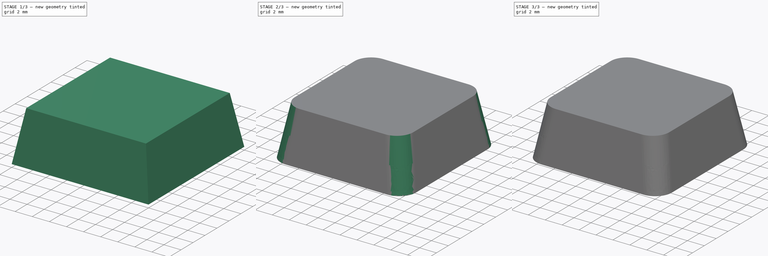
[diagram: build sequence overview — one tinted view per stage of 3, left to right]
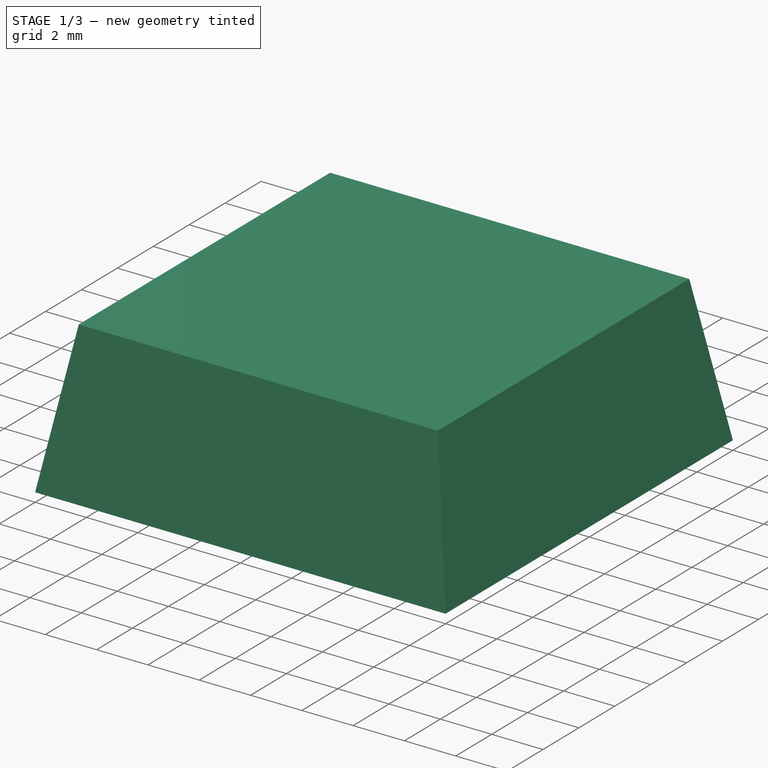
[diagram: stage 1 of 3 — iso view after this stage's code; geometry added in this stage tinted green]
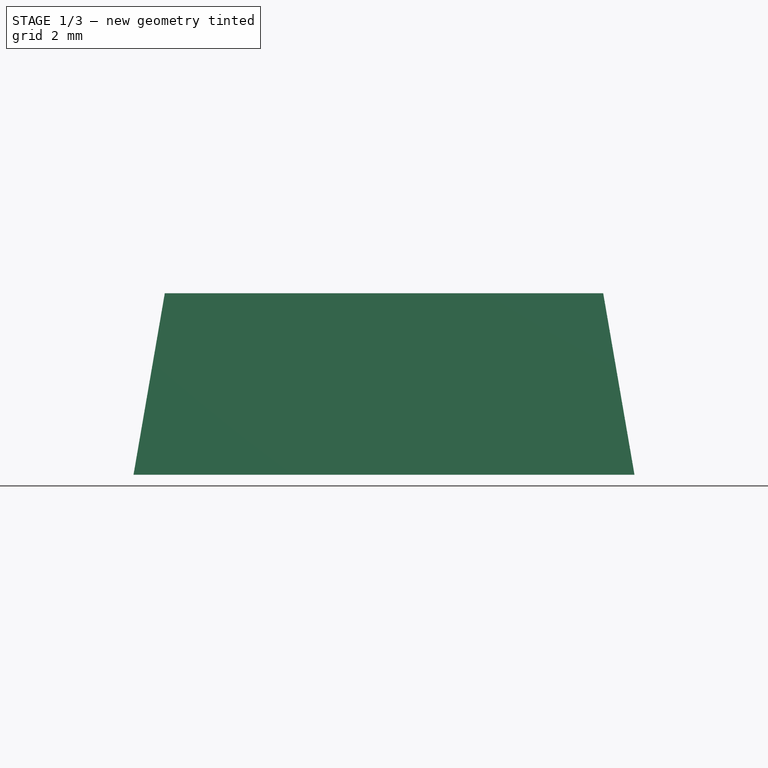
[diagram: stage 1 of 3 — front view after this stage's code; geometry added in this stage tinted green]
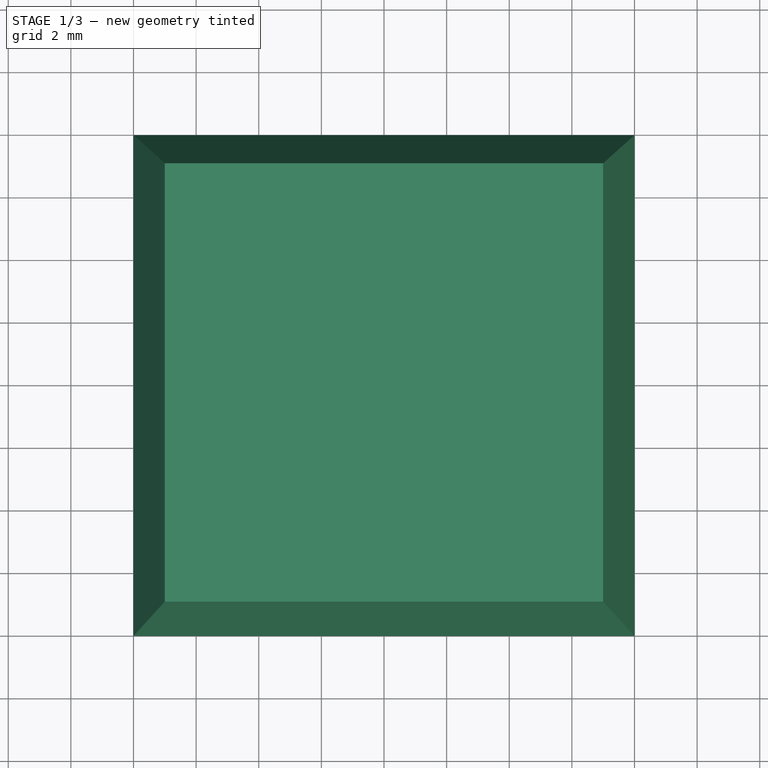
[diagram: stage 1 of 3 — top view after this stage's code; geometry added in this stage tinted green]
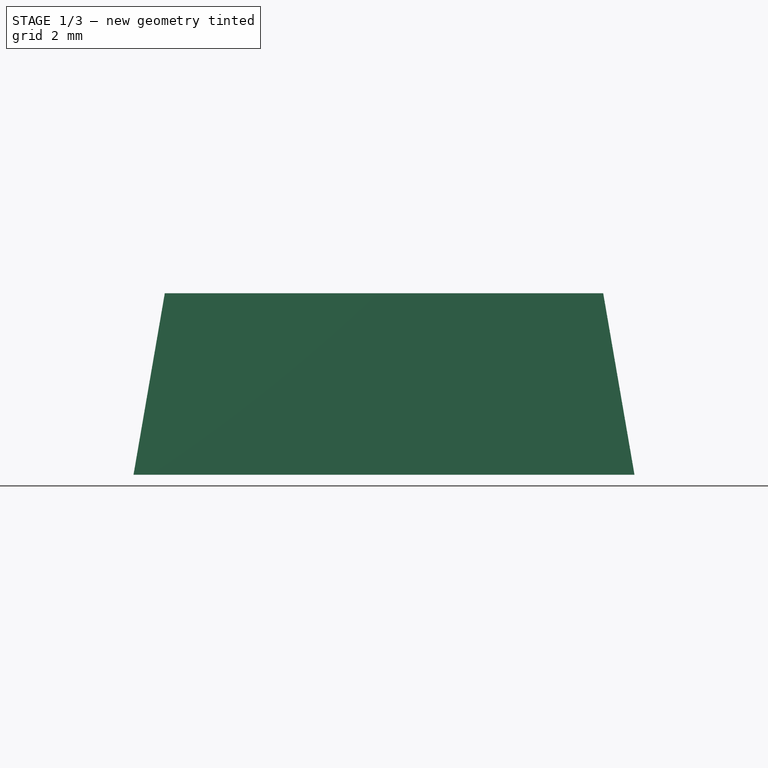
[diagram: stage 1 of 3 — right view after this stage's code; geometry added in this stage tinted green]
FCSTD DOCUMENT  (FreeCAD 0.19R24291 (Git))
Label: kailh-choc-v1-keycap_v110
License: All rights reserved
LicenseURL: http://en.wikipedia.org/wiki/All_rights_reserved
objects: Sketcher::SketchObject×5, PartDesign::Fillet×3, Spreadsheet::Sheet×1, PartDesign::AdditiveLoft×1, PartDesign::SubtractiveLoft×1, PartDesign::Pad×1, PartDesign::Mirrored×1, PartDesign::Body×1
note: 19 computed .brp shape members not serialized (recipe doc carries the construction recipe); baked Part::Feature solids carry a one-line shape summary decoded from their .brp

FEATURE [Spreadsheet::Sheet] Spreadsheet  label="Parameters"
  cells = A1=base_width; B1(base_width)=16; A2=base_height; B2(base_height)=16; A3=keycap_height; B3(keycap_height)=5.8; A4=keycap_corner_radius; B4(keycap_corner_radius)=2; A5=keycap_walls; B5(keycap_walls)=2.4; A6=connector_width; B6(connector_width)=1; A7=connector_height; B7(connector_height)=3; A8=connector_length; B8(connector_length)=4; A9=connector_distance; B9(connector_distance)=4.4; A10=keycap_slope; B10(keycap_slope)=2; A11=keycap_top_angle; B11(keycap_top_angle)=0; A12=keycap_inner_height; B12(keycap_inner_height)=3.1; A13=keycap_inner_top_height; B13(keycap_inner_top_height)=13.1; A14=keycap_inner_top_width; B14(keycap_inner_top_width)=12.7; A15=keycap_inner_base_height; B15(keycap_inner_base_height)=14.1; A16=keycap_inner_base_width; B16(keycap_inner_base_width)=14.5; C16=14.2
FEATURE [Sketcher::SketchObject] Sketch003  label="keycap_base"
  FullyConstrained = true
  MapMode = 5
  Support = -> [XY_Plane]
  expr: Constraints[11] = <<Parameters>>.base_width / 2
  expr: Constraints[10] = <<Parameters>>.base_height / 2
  expr: Constraints[9] = <<Parameters>>.base_height
  expr: Constraints[8] = <<Parameters>>.base_width
  sketch-geometry (4):
    g0: LineSegment StartX=-8 StartY=8 StartZ=0 EndX=8 EndY=8 EndZ=0
    g1: LineSegment StartX=8 StartY=8 StartZ=0 EndX=8 EndY=-8 EndZ=0
    g2: LineSegment StartX=8 StartY=-8 StartZ=0 EndX=-8 EndY=-8 EndZ=0
    g3: LineSegment StartX=-8 StartY=-8 StartZ=0 EndX=-8 EndY=8 EndZ=0
  constraints (12):
    c: Coincident(g0,g1)
    c: Coincident(g1,g2)
    c: Coincident(g2,g3)
    c: Coincident(g3,g0)
    c: Horizontal(g0)
    c: Horizontal(g2)
    c: Vertical(g1)
    c: Vertical(g3)
    c: DistanceX(g0,g0) = 16
    c: DistanceY(g3,g3) = 16
    c: DistanceY(g-1,g0) = 8
    c: DistanceX(g-1,g1) = 8
FEATURE [Sketcher::SketchObject] Sketch004  label="keycap_top"
  AttachmentOffset = pos=(0,0,5.8) rot=(1,0,0;0rad)
  FullyConstrained = true
  MapMode = 5
  Placement = pos=(0,0,5.8) rot=(0,0,1;0rad)
  Support = -> [XY_Plane]
  expr: Constraints[11] = (<<Parameters>>.base_width - <<Parameters>>.keycap_slope) / 2
  expr: Constraints[10] = (<<Parameters>>.base_height - <<Parameters>>.keycap_slope) / 2
  expr: .AttachmentOffset.Base.z = <<Parameters>>.keycap_height
  expr: Constraints[9] = <<Parameters>>.base_height - <<Parameters>>.keycap_slope
  expr: .AttachmentOffset.Rotation.Angle = <<Parameters>>.keycap_top_angle
  expr: Constraints[8] = <<Parameters>>.base_width - <<Parameters>>.keycap_slope
  sketch-geometry (4):
    g0: LineSegment StartX=-7 StartY=7 StartZ=0 EndX=7 EndY=7 EndZ=0
    g1: LineSegment StartX=7 StartY=7 StartZ=0 EndX=7 EndY=-7 EndZ=0
    g2: LineSegment StartX=7 StartY=-7 StartZ=0 EndX=-7 EndY=-7 EndZ=0
    g3: LineSegment StartX=-7 StartY=-7 StartZ=0 EndX=-7 EndY=7 EndZ=0
  constraints (12):
    c: Coincident(g0,g1)
    c: Coincident(g1,g2)
    c: Coincident(g2,g3)
    c: Coincident(g3,g0)
    c: Horizontal(g0)
    c: Horizontal(g2)
    c: Vertical(g1)
    c: Vertical(g3)
    c: DistanceX(g0,g0) = 14
    c: DistanceY(g3,g3) = 14
    c: DistanceY(g-1,g0) = 7
    c: DistanceX(g-1,g1) = 7
FEATURE [PartDesign::AdditiveLoft] AdditiveLoft  label="keycap"
  Closed = false
  Profile = -> Sketch003
  Ruled = false
  Sections = -> [Sketch004]
FEATURE [Sketcher::SketchObject] Sketch  label="keycap_inner_base"
  FullyConstrained = true
  MapMode = 5
  Placement = pos=(0,0,0) rot=(1,0,0;3.14159rad)
  Support = -> [AdditiveLoft]
  expr: Constraints[10] = <<Parameters>>.keycap_inner_base_height / 2
  expr: Constraints[9] = <<Parameters>>.keycap_inner_base_height
  expr: Constraints[8] = <<Parameters>>.keycap_inner_base_width
  expr: Constraints[11] = <<Parameters>>.keycap_inner_base_width / 2
  sketch-geometry (4):
    g0: LineSegment StartX=-7.25 StartY=7.05 StartZ=0 EndX=7.25 EndY=7.05 EndZ=0
    g1: LineSegment StartX=7.25 StartY=7.05 StartZ=0 EndX=7.25 EndY=-7.05 EndZ=0
    g2: LineSegment StartX=7.25 StartY=-7.05 StartZ=0 EndX=-7.25 EndY=-7.05 EndZ=0
    g3: LineSegment StartX=-7.25 StartY=-7.05 StartZ=0 EndX=-7.25 EndY=7.05 EndZ=0
  constraints (12):
    c: Coincident(g0,g1)
    c: Coincident(g1,g2)
    c: Coincident(g2,g3)
    c: Coincident(g3,g0)
    c: Horizontal(g0)
    c: Horizontal(g2)
    c: Vertical(g1)
    c: Vertical(g3)
    c: DistanceX(g0,g0) = 14.5
    c: DistanceY(g3,g3) = 14.1
    c: DistanceY(g-1,g0) = 7.05
    c: DistanceX(g-1,g1) = 7.25
FEATURE [Sketcher::SketchObject] Sketch005  label="keycap_inner_top"
  AttachmentOffset = pos=(0,0,3.1) rot=(0,0,1;0rad)
  FullyConstrained = true
  MapMode = 5
  Placement = pos=(0,0,3.1) rot=(0,0,1;0rad)
  Support = -> [XY_Plane]
  expr: Constraints[10] = <<Parameters>>.keycap_inner_top_height / 2
  expr: .AttachmentOffset.Base.z = <<Parameters>>.keycap_inner_height
  expr: Constraints[9] = <<Parameters>>.keycap_inner_top_height
  expr: Constraints[8] = <<Parameters>>.keycap_inner_top_width
  expr: Constraints[11] = <<Parameters>>.keycap_inner_top_width / 2
  sketch-geometry (4):
    g0: LineSegment StartX=-6.35 StartY=6.55 StartZ=0 EndX=6.35 EndY=6.55 EndZ=0
    g1: LineSegment StartX=6.35 StartY=6.55 StartZ=0 EndX=6.35 EndY=-6.55 EndZ=0
    g2: LineSegment StartX=6.35 StartY=-6.55 StartZ=0 EndX=-6.35 EndY=-6.55 EndZ=0
    g3: LineSegment StartX=-6.35 StartY=-6.55 StartZ=0 EndX=-6.35 EndY=6.55 EndZ=0
  constraints (12):
    c: Coincident(g0,g1)
    c: Coincident(g1,g2)
    c: Coincident(g2,g3)
    c: Coincident(g3,g0)
    c: Horizontal(g0)
    c: Horizontal(g2)
    c: Vertical(g1)
    c: Vertical(g3)
    c: DistanceX(g0,g0) = 12.7
    c: DistanceY(g3,g3) = 13.1
    c: DistanceY(g-1,g0) = 6.55
    c: DistanceX(g-1,g1) = 6.35
FEATURE [PartDesign::SubtractiveLoft] SubtractiveLoft  label="keycap_inner_space"
  BaseFeature = -> AdditiveLoft
  Closed = false
  Profile = -> Sketch
  Ruled = false
  Sections = -> [Sketch005]
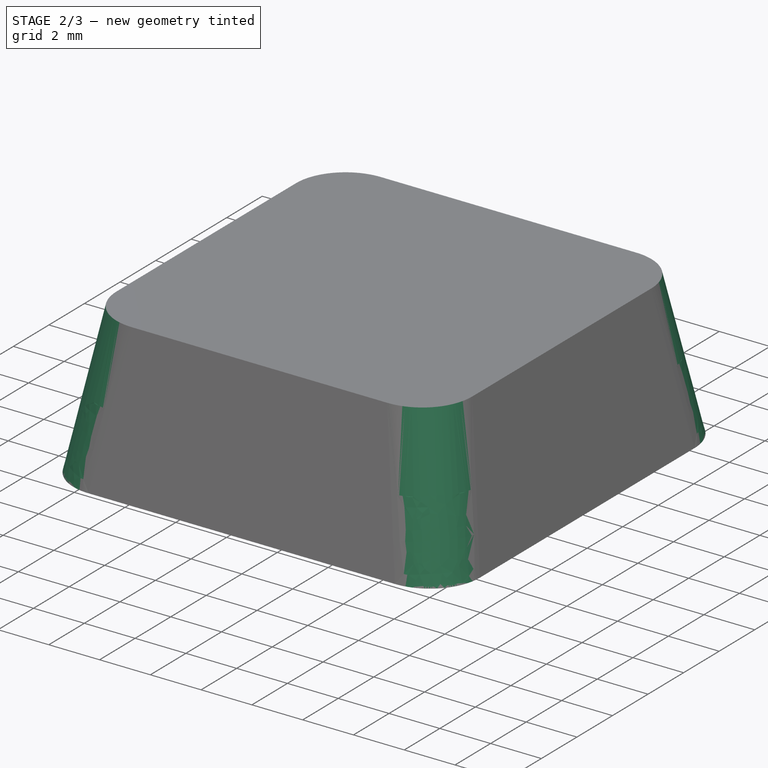
[diagram: stage 2 of 3 — iso view after this stage's code; geometry added in this stage tinted green]
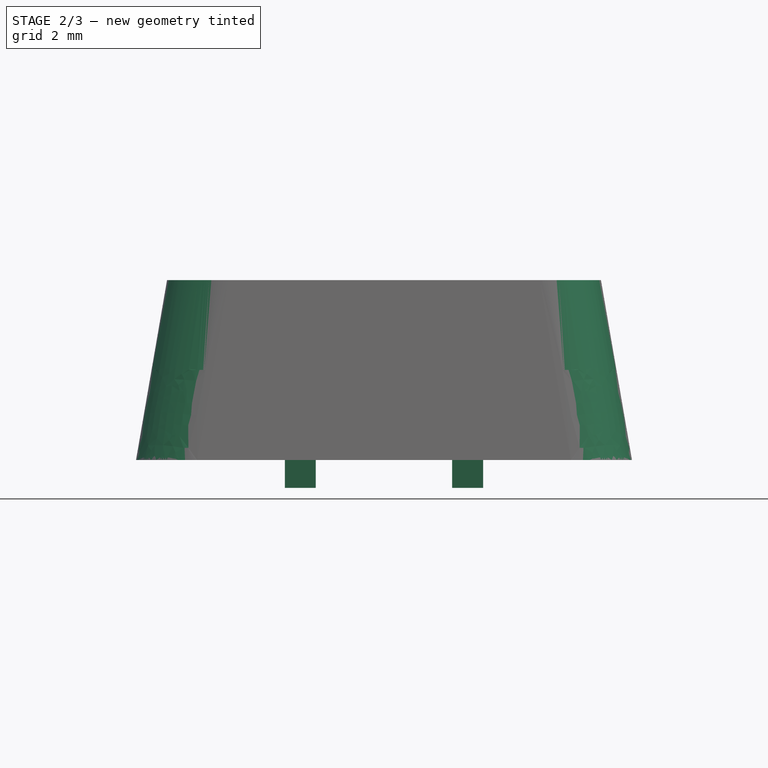
[diagram: stage 2 of 3 — front view after this stage's code; geometry added in this stage tinted green]
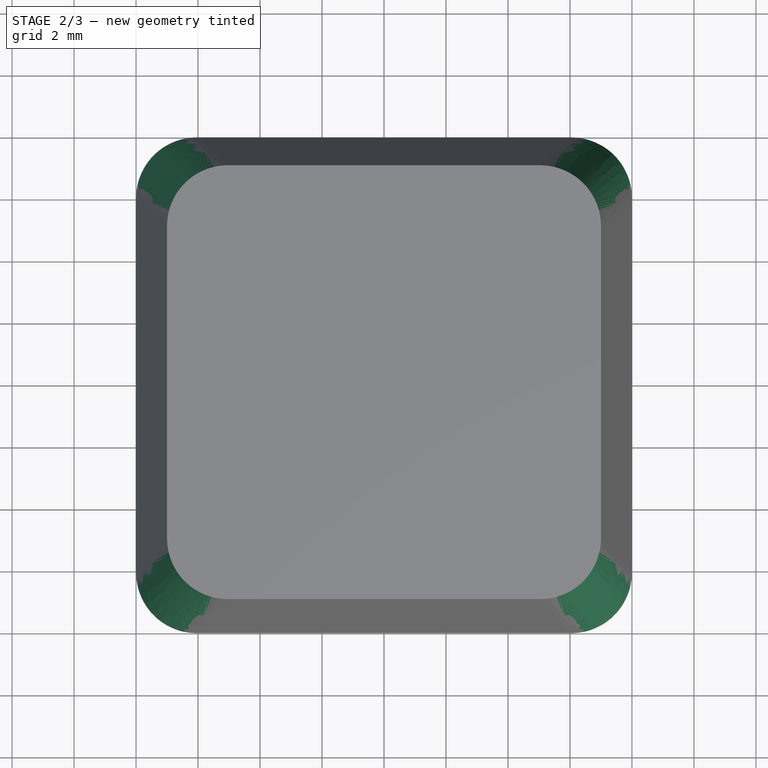
[diagram: stage 2 of 3 — top view after this stage's code; geometry added in this stage tinted green]
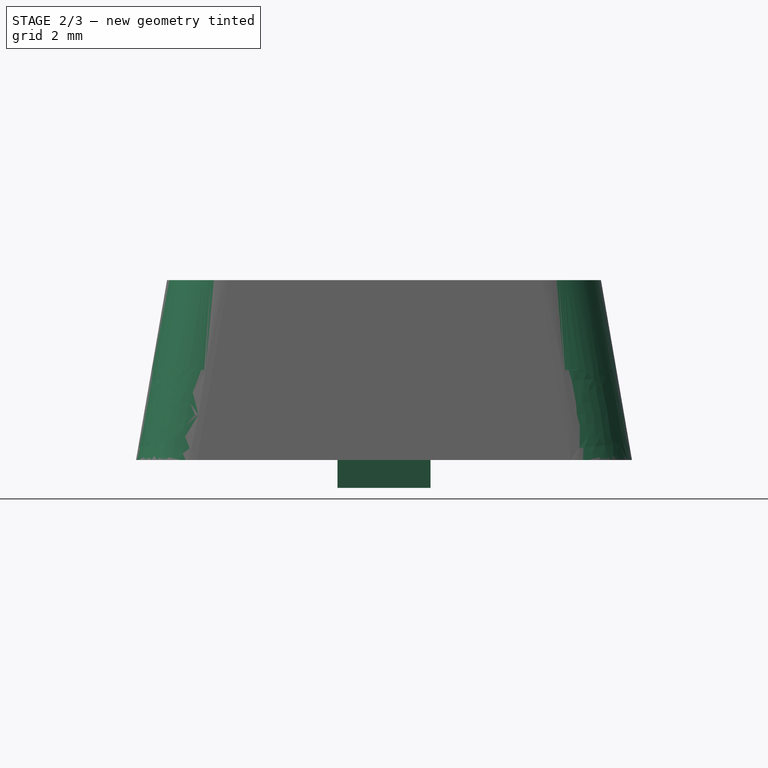
[diagram: stage 2 of 3 — right view after this stage's code; geometry added in this stage tinted green]
FEATURE [Sketcher::SketchObject] Sketch006  label="connector_base"
  FullyConstrained = true
  MapMode = 5
  Placement = pos=(0,0,3.1) rot=(1,0,0;3.14159rad)
  Support = -> [SubtractiveLoft]
  expr: Constraints[8] = <<Parameters>>.connector_width
  expr: Constraints[9] = <<Parameters>>.connector_distance / 2
  expr: Constraints[10] = <<Parameters>>.connector_height
  expr: Constraints[11] = <<Parameters>>.connector_height / 2
  sketch-geometry (4):
    g0: LineSegment StartX=-3.2 StartY=1.5 StartZ=0 EndX=-2.2 EndY=1.5 EndZ=0
    g1: LineSegment StartX=-2.2 StartY=1.5 StartZ=0 EndX=-2.2 EndY=-1.5 EndZ=0
    g2: LineSegment StartX=-2.2 StartY=-1.5 StartZ=0 EndX=-3.2 EndY=-1.5 EndZ=0
    g3: LineSegment StartX=-3.2 StartY=-1.5 StartZ=0 EndX=-3.2 EndY=1.5 EndZ=0
  constraints (12):
    c: Coincident(g0,g1)
    c: Coincident(g1,g2)
    c: Coincident(g2,g3)
    c: Coincident(g3,g0)
    c: Horizontal(g0)
    c: Horizontal(g2)
    c: Vertical(g1)
    c: Vertical(g3)
    c: DistanceX(g0,g0) = 1
    c: DistanceX(g0,g-1) = 2.2
    c: DistanceY(g3,g3) = 3
    c: DistanceY(g-1,g0) = 1.5
FEATURE [PartDesign::Pad] Pad  label="connector"
  BaseFeature = -> SubtractiveLoft
  Direction = (1,1,1)
  Length = 4
  Length2 = 100
  Profile = -> Sketch006
  Type = 0
  expr: Length = <<Parameters>>.connector_length
FEATURE [PartDesign::Mirrored] Mirrored
  BaseFeature = -> Pad
  MirrorPlane = -> Sketch006 [V_Axis]
  Originals = -> [Pad]
FEATURE [PartDesign::Fillet] Fillet
  Base = -> Mirrored [Edge13,Edge11,Edge9,Edge14]
  BaseFeature = -> Mirrored
  Radius = 2
  SupportTransform = false
  expr: Radius = <<Parameters>>.keycap_corner_radius
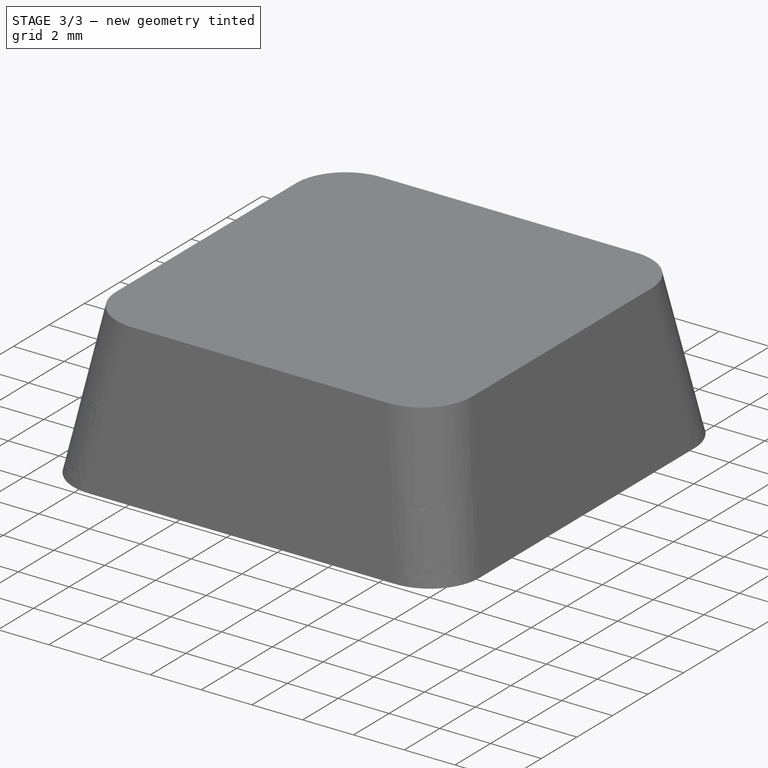
[diagram: stage 3 of 3 — iso view after this stage's code; geometry added in this stage tinted green]
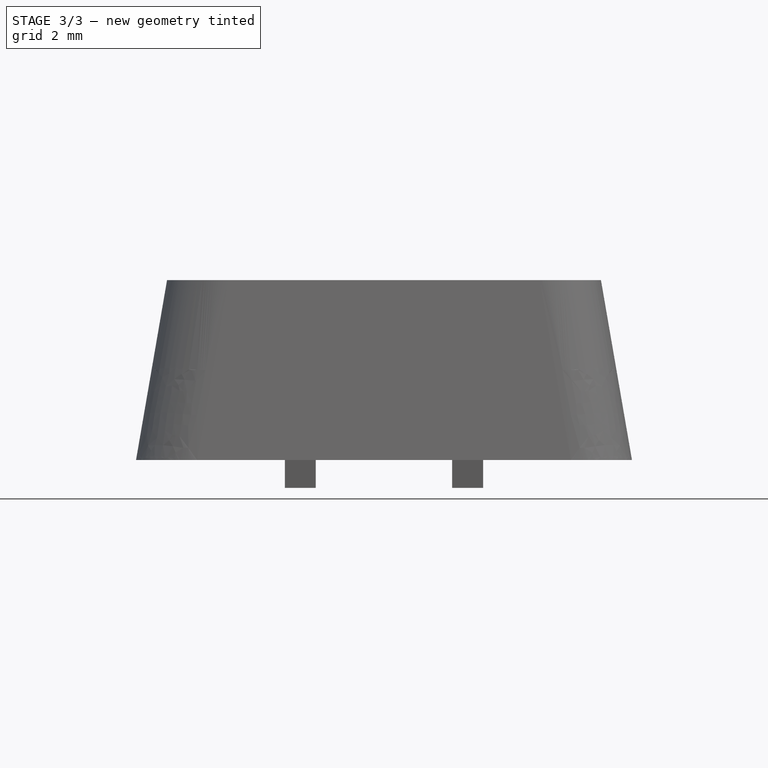
[diagram: stage 3 of 3 — front view after this stage's code; geometry added in this stage tinted green]
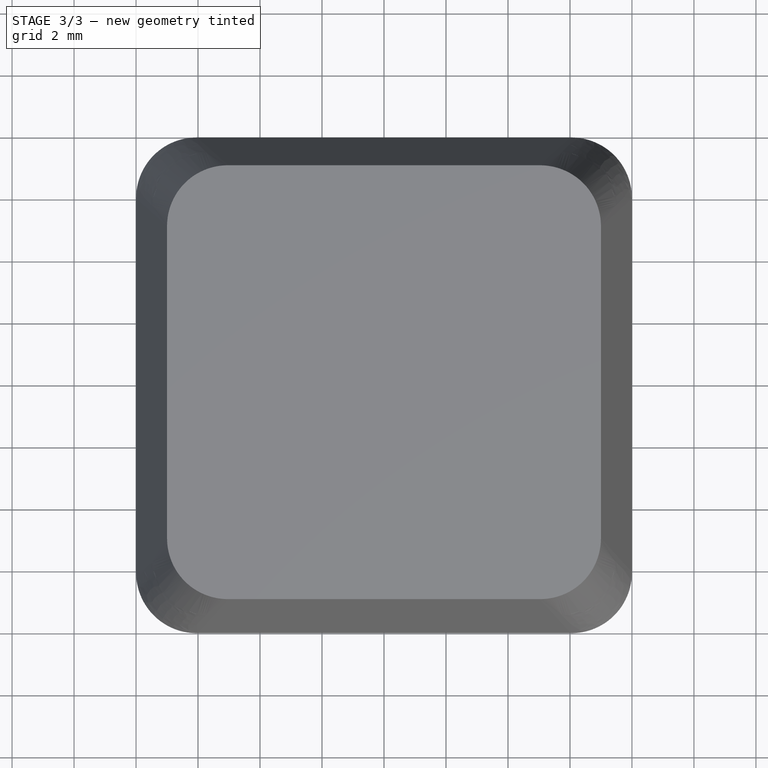
[diagram: stage 3 of 3 — top view after this stage's code; geometry added in this stage tinted green]
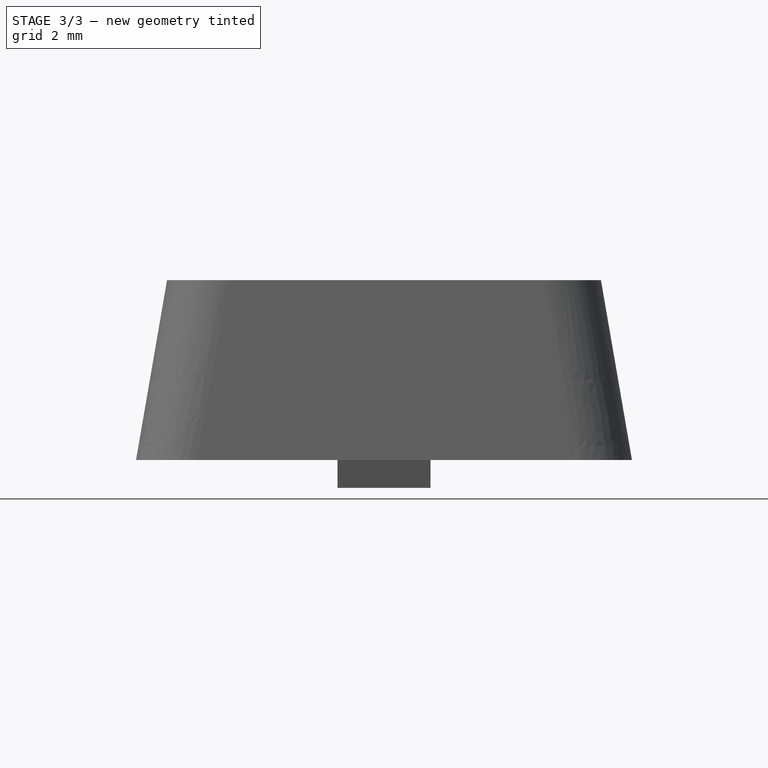
[diagram: stage 3 of 3 — right view after this stage's code; geometry added in this stage tinted green]
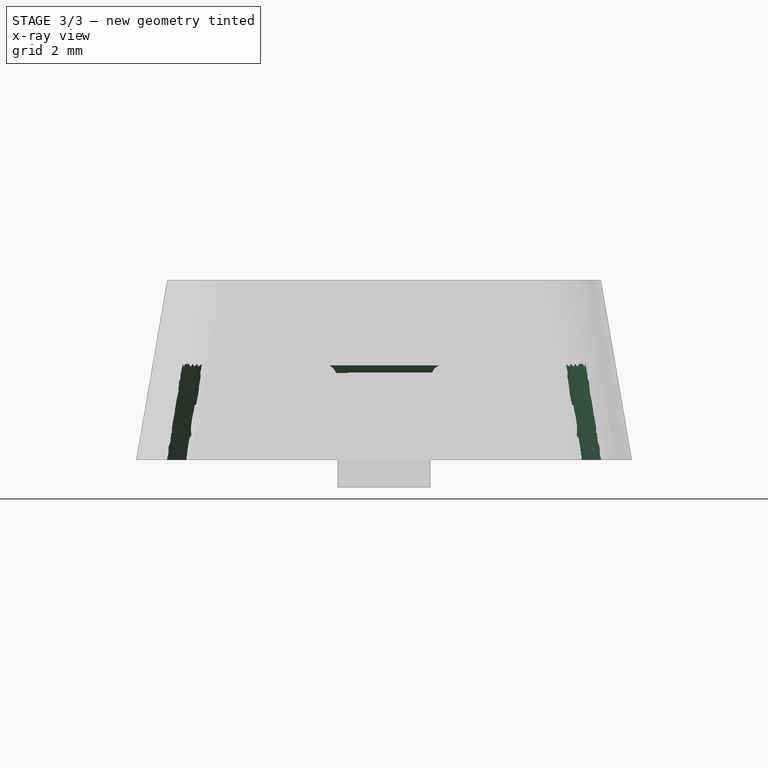
[diagram: stage 3 of 3 — x-ray composite at the right view; earlier geometry ghosted, this stage's added geometry solid]
FEATURE [PartDesign::Fillet] Fillet001
  Base = -> Fillet [Edge29,Edge31,Edge35,Edge33]
  BaseFeature = -> Fillet
  Radius = 1
  SupportTransform = false
  expr: Radius = <<Parameters>>.keycap_corner_radius / 2
FEATURE [PartDesign::Fillet] Fillet002
  Base = -> Fillet001 [Edge56,Edge55,Edge49,Edge52,Edge51,Edge54,Edge50,Edge53]
  BaseFeature = -> Fillet001
  Radius = 0.5
  SupportTransform = false
FEATURE [PartDesign::Body] Body
  Group = -> [Sketch003,Sketch004,AdditiveLoft,SubtractiveLoft,Sketch,Sketch005,Sketch006,Pad,Mirrored,Fillet,Fillet001,Fillet002]
  Origin = -> Origin
  Tip = -> Fillet002
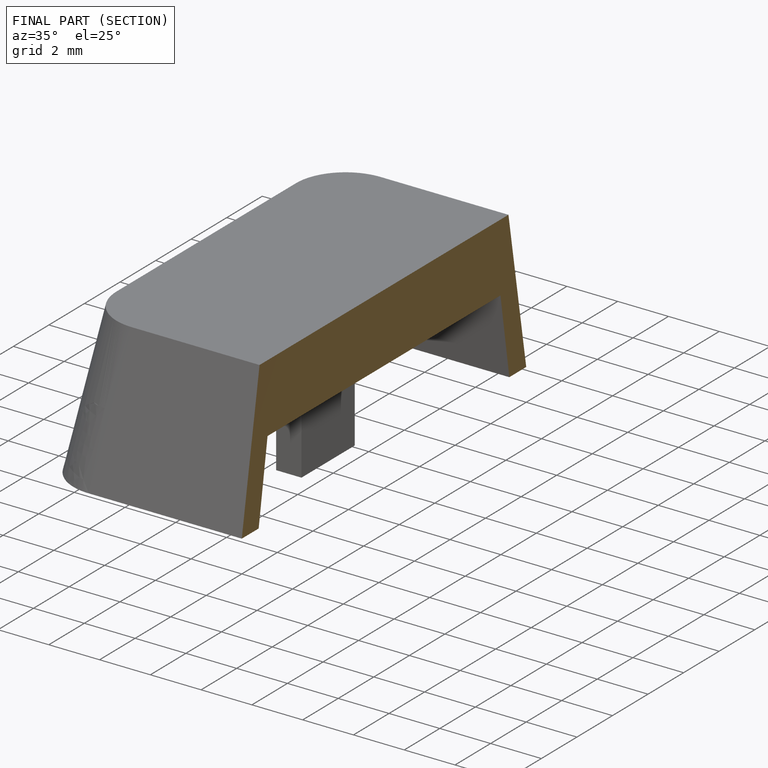
[diagram: finished part — half-section view (interior)]
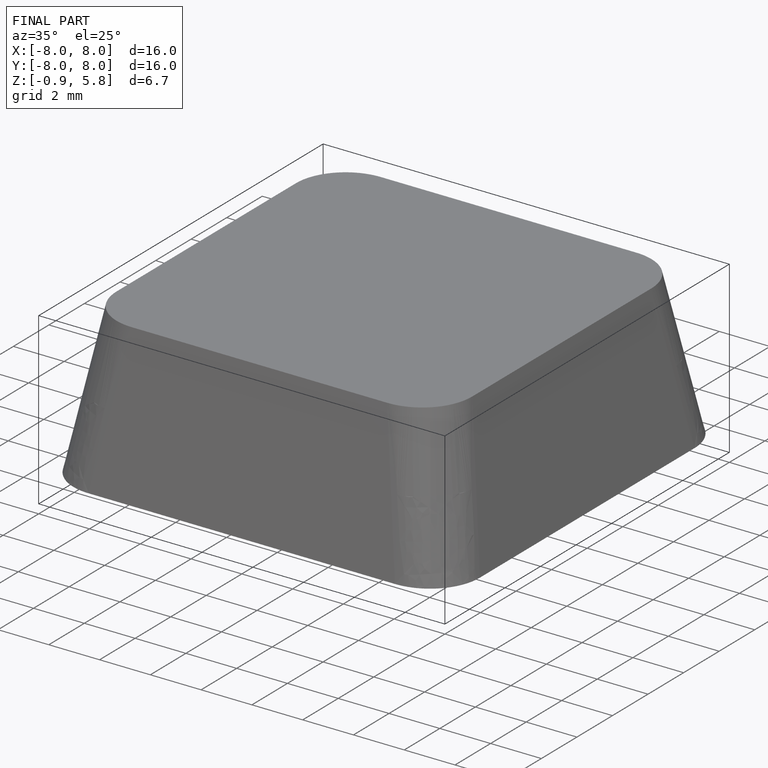
[diagram: finished part — iso view with bounding-box wireframe]
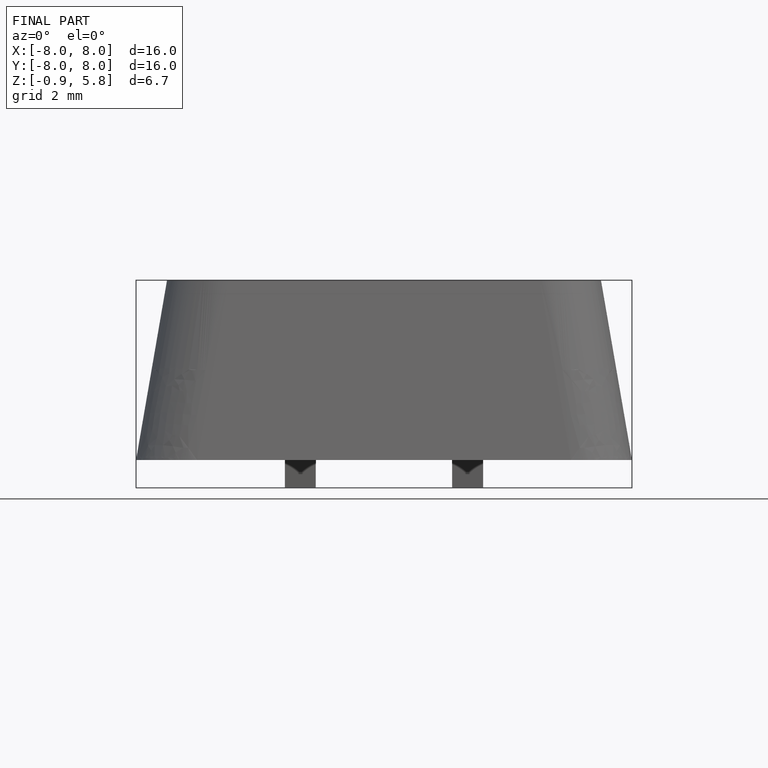
[diagram: finished part — front view with bounding-box wireframe]
